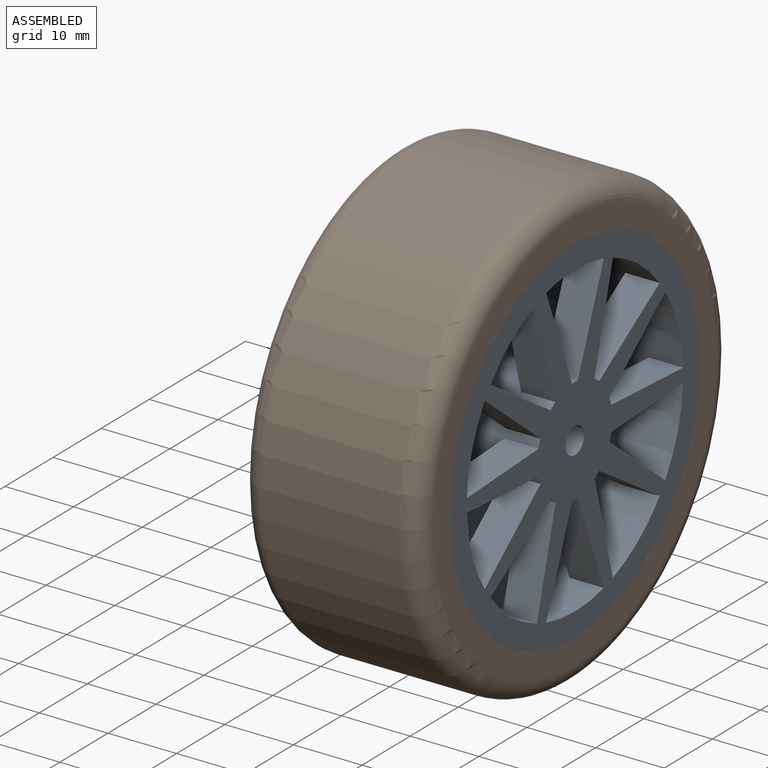
[diagram: assembled view]
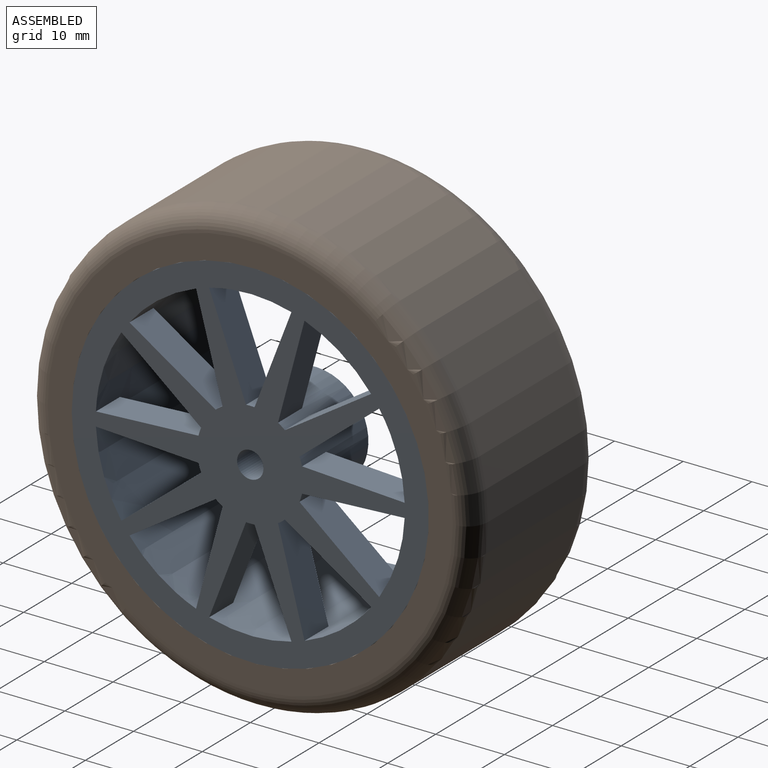
[diagram: assembled view, second angle]
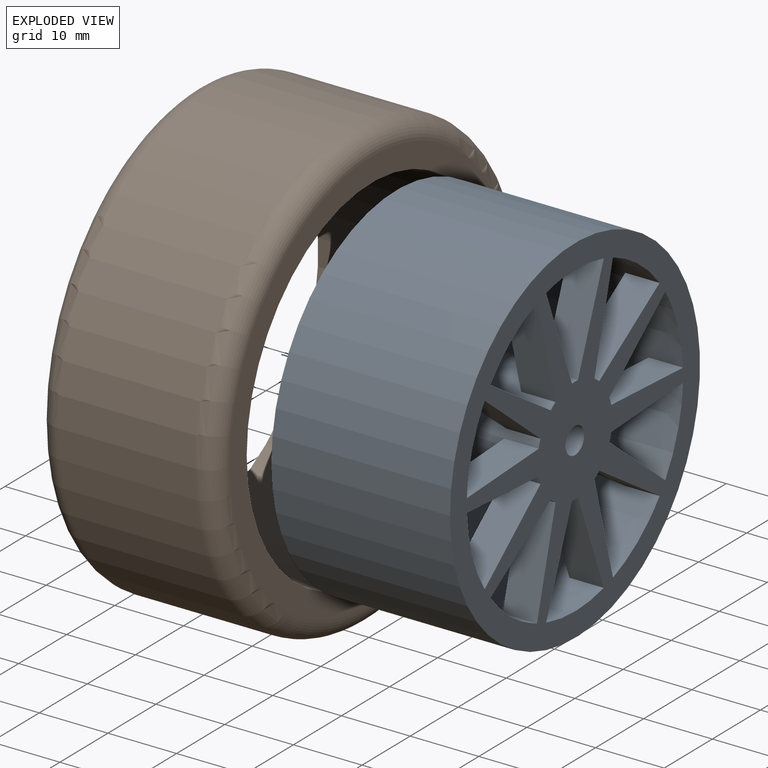
[diagram: exploded view]
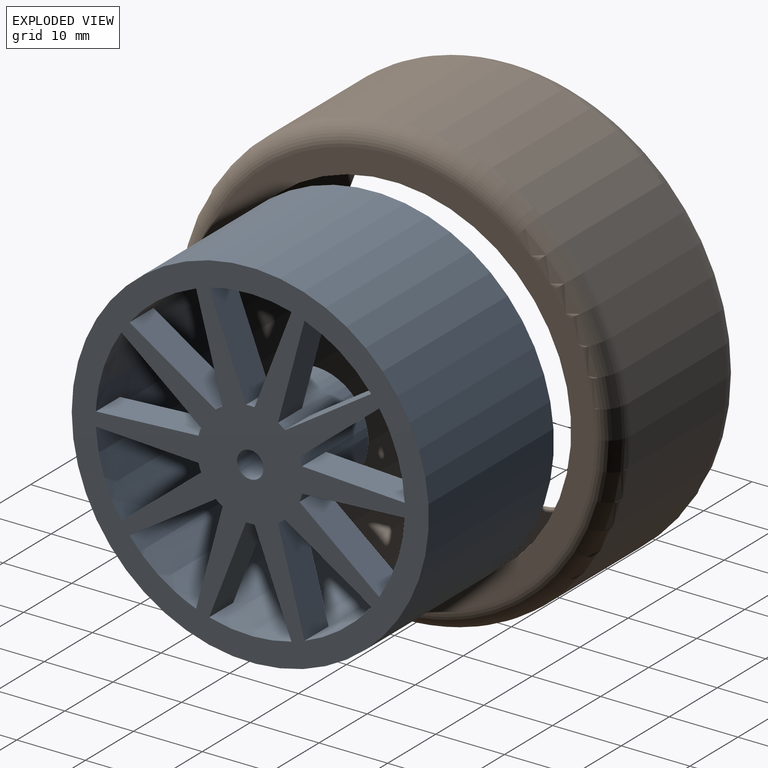
[diagram: exploded view, second angle]
ASSEMBLY  parts=2 mates=2
PART A: 45 faces, bbox 52x26x52 mm
  f0: cylinder r=1.93mm len=8.5mm, axis (0,1,0), area 102.8mm2, adj f3,f44
  f1: cylinder r=7.75mm len=15.5mm, axis (0,1,0), area 475.7mm2, adj f3,f4,f5,f6,f7,f11,f12,f13
  f2: extruded ~44.99x44.98mm, area 3534mm2, adj f3,f5,f6,f8,f10,f11,f12,f13
  f3: plane 52x52mm, normal (0,-1,0), area 1123.9mm2, adj f0,f1,f2,f5,f6,f9,f11,f12
  f4: plane 15.5x15.5mm, normal (0,1,0), area 59.8mm2, adj f1,f38,f39,f40,f41,f42,f43
  f5: plane 14.94x5mm, normal (-1,0,0.05), area 74.8mm2, adj f1,f2,f3,f7
  f6: plane 14.94x5mm, normal (1,0,0.05), area 74.8mm2, adj f1,f2,f3,f7
  f7: plane 14.96x3.6mm, normal (0,1,0), area 41.4mm2, adj f1,f5,f6,f8
  f8: cylinder r=22.5mm len=21mm, axis (0,-1,0), area 42mm2, adj f2,f7,f10
  f9: cylinder r=26mm len=52mm, axis (0,-1,0), area 4247.4mm2, adj f3,f10
  f10: plane 52x52mm, normal (0,1,0), area 533.4mm2, adj f2,f8,f9
  f11: plane 12.56x8.13mm, normal (-0.84,0,-0.54), area 74.8mm2, adj f1,f2,f3,f13
  f12: plane 11.62x9.43mm, normal (0.78,0,0.63), area 74.8mm2, adj f1,f2,f3,f13
  f13: plane 13.73x11.05mm, normal (0,1,0), area 41.4mm2, adj f1,f2,f11,f12
  f14: plane 13.96x5.38mm, normal (-0.36,0,-0.93), area 74.8mm2, adj f1,f2,f3,f16
  f15: plane 14.46x5mm, normal (0.26,0,0.97), area 74.8mm2, adj f1,f2,f3,f16
  f16: plane 15.07x7.28mm, normal (0,1,0), area 41.4mm2, adj f1,f2,f14,f15
  f17: plane 14.46x5mm, normal (0.26,0,-0.97), area 74.8mm2, adj f1,f2,f3,f19
  f18: plane 13.96x5.38mm, normal (-0.36,0,0.93), area 74.8mm2, adj f1,f2,f3,f19
  f19: plane 15.07x7.28mm, normal (0,1,0), area 41.4mm2, adj f1,f2,f17,f18
  f20: plane 11.62x9.43mm, normal (0.78,0,-0.63), area 74.8mm2, adj f1,f2,f3,f22
  f21: plane 12.56x8.13mm, normal (-0.84,0,0.54), area 74.8mm2, adj f1,f2,f3,f22
  f22: plane 13.73x11.05mm, normal (0,1,0), area 41.4mm2, adj f1,f2,f20,f21
  f23: plane 14.94x5mm, normal (1,0,-0.05), area 74.8mm2, adj f1,f2,f3,f25
  f24: plane 14.94x5mm, normal (-1,0,-0.05), area 74.8mm2, adj f1,f2,f3,f25
  f25: plane 14.97x3.6mm, normal (0,1,0), area 41.4mm2, adj f1,f2,f23,f24
  f26: plane 12.56x8.13mm, normal (0.84,0,0.54), area 74.8mm2, adj f1,f2,f3,f28
  f27: plane 11.62x9.43mm, normal (-0.78,0,-0.63), area 74.8mm2, adj f1,f2,f3,f28
  f28: plane 13.73x11.05mm, normal (0,1,0), area 41.4mm2, adj f1,f2,f26,f27
  f29: plane 13.96x5.38mm, normal (0.36,0,0.93), area 74.8mm2, adj f1,f2,f3,f31
  f30: plane 14.46x5mm, normal (-0.26,0,-0.97), area 74.8mm2, adj f1,f2,f3,f31
  f31: plane 15.07x7.28mm, normal (0,1,0), area 41.4mm2, adj f1,f2,f29,f30
  f32: plane 14.46x5mm, normal (-0.26,0,0.97), area 74.8mm2, adj f1,f2,f3,f34
  f33: plane 13.96x5.38mm, normal (0.36,0,-0.93), area 74.8mm2, adj f1,f2,f3,f34
  f34: plane 15.07x7.28mm, normal (0,1,0), area 41.4mm2, adj f1,f2,f32,f33
  f35: plane 11.62x9.43mm, normal (-0.78,0,0.63), area 74.8mm2, adj f1,f2,f3,f37
  f36: plane 12.56x8.13mm, normal (0.84,0,-0.54), area 74.8mm2, adj f1,f2,f3,f37
  f37: plane 13.73x11.05mm, normal (0,1,0), area 41.4mm2, adj f1,f2,f35,f36
  f38: plane 6.1x5mm, normal (0.87,0,0.5), area 35.2mm2, adj f4,f39,f43,f44
  f39: plane 6.1x5mm, normal (0.87,0,-0.5), area 35.2mm2, adj f4,f38,f40,f44
  f40: plane 7.04x5mm, normal (0,0,-1), area 35.2mm2, adj f4,f39,f41,f44
  f41: plane 6.1x5mm, normal (-0.87,0,-0.5), area 35.2mm2, adj f4,f40,f42,f44
  f42: plane 6.1x5mm, normal (-0.87,0,0.5), area 35.2mm2, adj f4,f41,f43,f44
  f43: plane 7.04x5mm, normal (0,0,1), area 35.2mm2, adj f4,f38,f42,f44
  f44: plane 14.09x12.2mm, normal (0,1,0), area 117.3mm2, adj f0,f38,f39,f40,f41,f42,f43
PART B: 6 faces, bbox 70.4x26x70.4 mm
  f0: plane 59x59mm, normal (0,1,0), area 610.3mm2, adj f1,f4
  f1: cylinder r=26mm len=52mm, axis (0,-1,0), area 4247.4mm2, adj f0,f3
  f2: cylinder r=32.5mm len=65mm, axis (0,-1,0), area 4084.1mm2, adj f4,f5
  f3: plane 59x59mm, normal (0,-1,0), area 610.3mm2, adj f1,f5
  f4: torus R=29.5mm, axis (0,-1,0), area 930mm2, adj f0,f2
  f5: torus R=29.5mm, axis (0,-1,0), area 930mm2, adj f2,f3
PLACE A rot(axis=(-0.58,0.58,0.58),120deg) t=(-13.5,0,0)mm
PLACE B rot(axis=(-0.58,0.58,0.58),120deg) t=(-13.5,0,0)mm
MATE planar A.f3 <-> B.f2  axis (1,0,0) through (0,-0.62,-7.73)mm
MATE slider A.f9 <-> B.f1  axis (1,0,0) through (-13,0,0)mm
